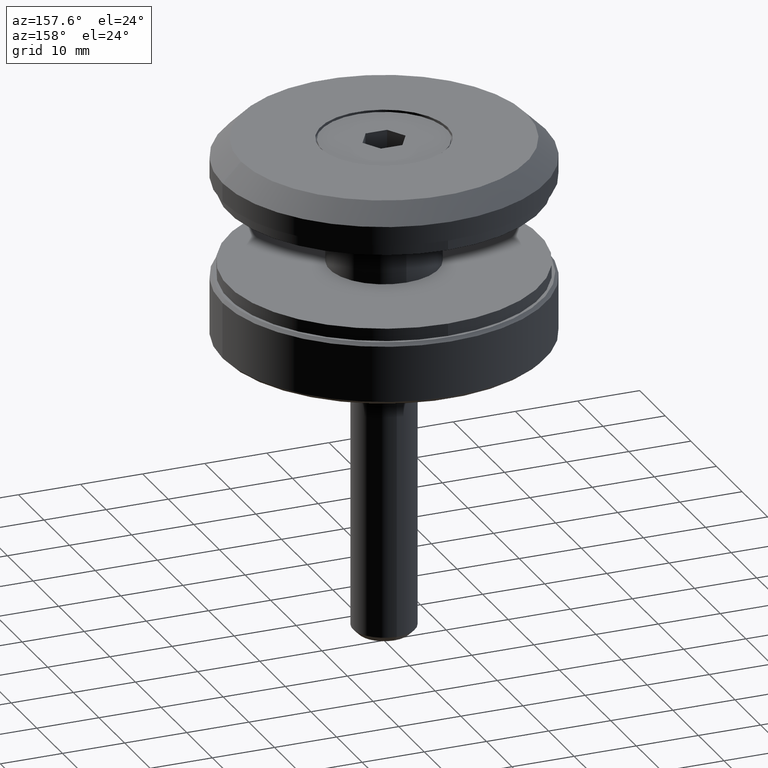
[diagram: clean part render]
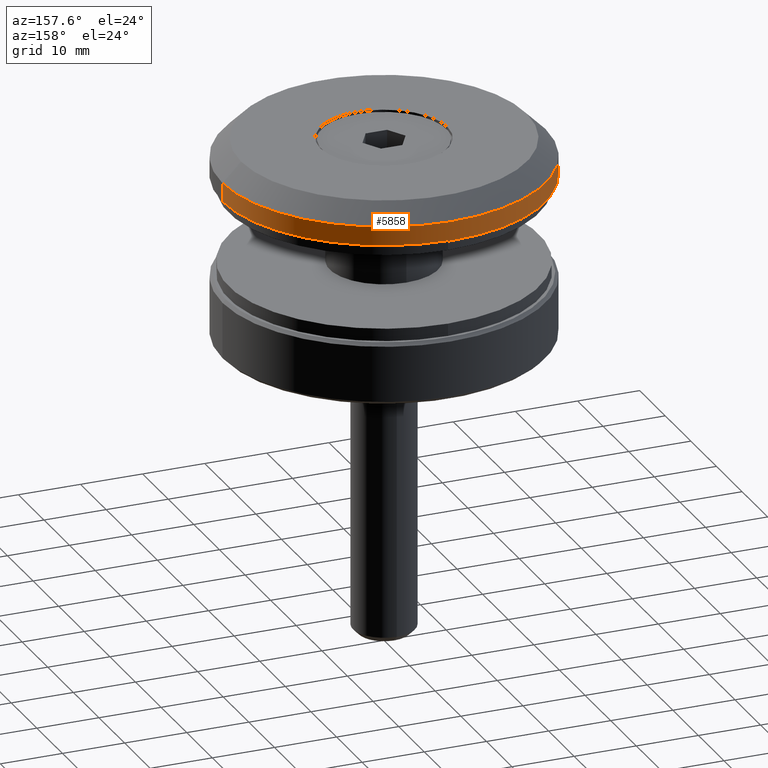
[diagram: same view with one face highlighted and labeled with its STEP entity id]
A machine part, auxiliary view. The second image highlights one B-rep face of the part: STEP entity #5858.
In plain terms, the highlighted cylindrical surface (partial cylindrical patch) has radius 26 mm, axis along (-0, -0, -1).
Its self-contained STEP definition (entity closure, byte-faithful):
#148 = ORIENTED_EDGE ( 'NONE', *, *, #660, .T. ) ;
#285 = CARTESIAN_POINT ( 'NONE',  ( 0.000000000000000000, 0.000000000000000000, 3.000000000000002665 ) ) ;
#319 = CARTESIAN_POINT ( 'NONE',  ( -26.00000000000000355, 0.000000000000000000, 0.000000000000000000 ) ) ;
#405 = CIRCLE ( 'NONE', #9170, 26.00000000000000355 ) ;
#645 = CARTESIAN_POINT ( 'NONE',  ( 26.00000000000000355, 3.184081677783118585E-15, 5.999999999999998224 ) ) ;
#660 = EDGE_CURVE ( 'NONE', #16372, #15756, #672, .T. ) ;
#672 = CIRCLE ( 'NONE', #3038, 26.00000000000000355 ) ;
#810 = CARTESIAN_POINT ( 'NONE',  ( 26.00000000000000355, 3.184081677783118585E-15, 0.000000000000000000 ) ) ;
#2051 = EDGE_CURVE ( 'NONE', #6498, #15756, #4652, .T. ) ;
#3038 = AXIS2_PLACEMENT_3D ( 'NONE', #7942, #6809, #13175 ) ;
#3362 = DIRECTION ( 'NONE',  ( -0.000000000000000000, -0.000000000000000000, -1.000000000000000000 ) ) ;
#3596 = CYLINDRICAL_SURFACE ( 'NONE', #4384, 26.00000000000000355 ) ;
#3858 = DIRECTION ( 'NONE',  ( 1.000000000000000000, 0.000000000000000000, 0.000000000000000000 ) ) ;
#4384 = AXIS2_PLACEMENT_3D ( 'NONE', #11042, #3362, #12230 ) ;
#4430 = EDGE_CURVE ( 'NONE', #6498, #16489, #405, .T. ) ;
#4652 = LINE ( 'NONE', #14944, #12681 ) ;
#5377 = DIRECTION ( 'NONE',  ( 0.000000000000000000, 0.000000000000000000, -1.000000000000000000 ) ) ;
#5858 = ADVANCED_FACE ( 'NONE', ( #15481 ), #3596, .T. ) ;
#6498 = VERTEX_POINT ( 'NONE', #8777 ) ;
#6809 = DIRECTION ( 'NONE',  ( 0.000000000000000000, 0.000000000000000000, 1.000000000000000000 ) ) ;
#7173 = DIRECTION ( 'NONE',  ( -0.000000000000000000, -0.000000000000000000, -1.000000000000000000 ) ) ;
#7307 = VECTOR ( 'NONE', #14726, 1000.000000000000000 ) ;
#7942 = CARTESIAN_POINT ( 'NONE',  ( 0.000000000000000000, 0.000000000000000000, 0.000000000000000000 ) ) ;
#8376 = ORIENTED_EDGE ( 'NONE', *, *, #2051, .F. ) ;
#8777 = CARTESIAN_POINT ( 'NONE',  ( -26.00000000000000355, 0.000000000000000000, 3.000000000000002665 ) ) ;
#9170 = AXIS2_PLACEMENT_3D ( 'NONE', #285, #5377, #3858 ) ;
#9642 = CARTESIAN_POINT ( 'NONE',  ( 26.00000000000000355, 3.184081677783118585E-15, 3.000000000000002665 ) ) ;
#11042 = CARTESIAN_POINT ( 'NONE',  ( 0.000000000000000000, 0.000000000000000000, 5.999999999999998224 ) ) ;
#11930 = ORIENTED_EDGE ( 'NONE', *, *, #14549, .T. ) ;
#12170 = EDGE_LOOP ( 'NONE', ( #15028, #11930, #148, #8376 ) ) ;
#12230 = DIRECTION ( 'NONE',  ( -1.000000000000000000, 0.000000000000000000, 0.000000000000000000 ) ) ;
#12681 = VECTOR ( 'NONE', #7173, 1000.000000000000000 ) ;
#13175 = DIRECTION ( 'NONE',  ( 1.000000000000000000, 0.000000000000000000, 0.000000000000000000 ) ) ;
#14150 = LINE ( 'NONE', #645, #7307 ) ;
#14549 = EDGE_CURVE ( 'NONE', #16489, #16372, #14150, .T. ) ;
#14726 = DIRECTION ( 'NONE',  ( -0.000000000000000000, -0.000000000000000000, -1.000000000000000000 ) ) ;
#14944 = CARTESIAN_POINT ( 'NONE',  ( -26.00000000000000355, 0.000000000000000000, 5.999999999999998224 ) ) ;
#15028 = ORIENTED_EDGE ( 'NONE', *, *, #4430, .T. ) ;
#15481 = FACE_OUTER_BOUND ( 'NONE', #12170, .T. ) ;
#15756 = VERTEX_POINT ( 'NONE', #319 ) ;
#16372 = VERTEX_POINT ( 'NONE', #810 ) ;
#16489 = VERTEX_POINT ( 'NONE', #9642 ) ;